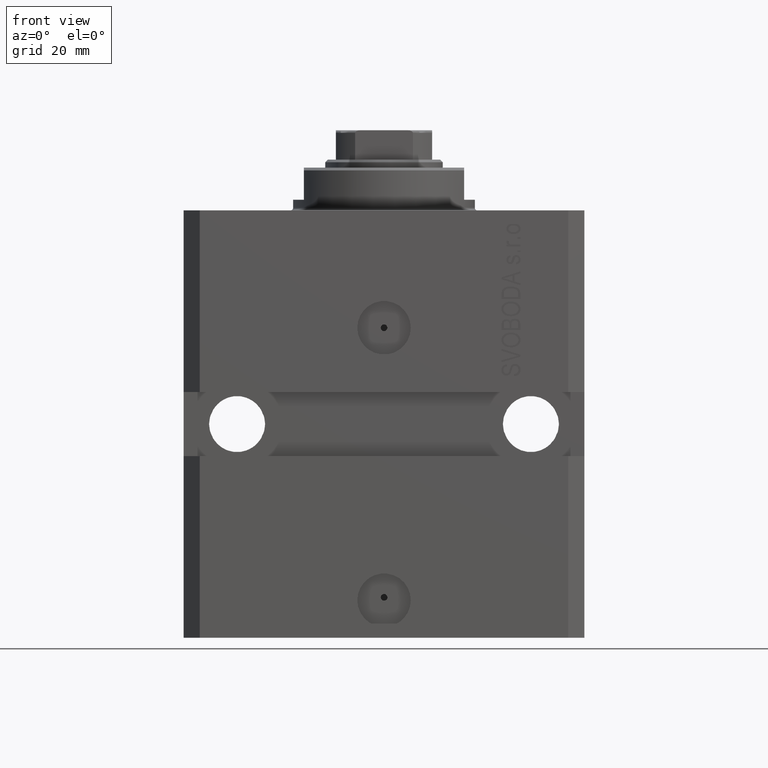
[diagram: clean part render]
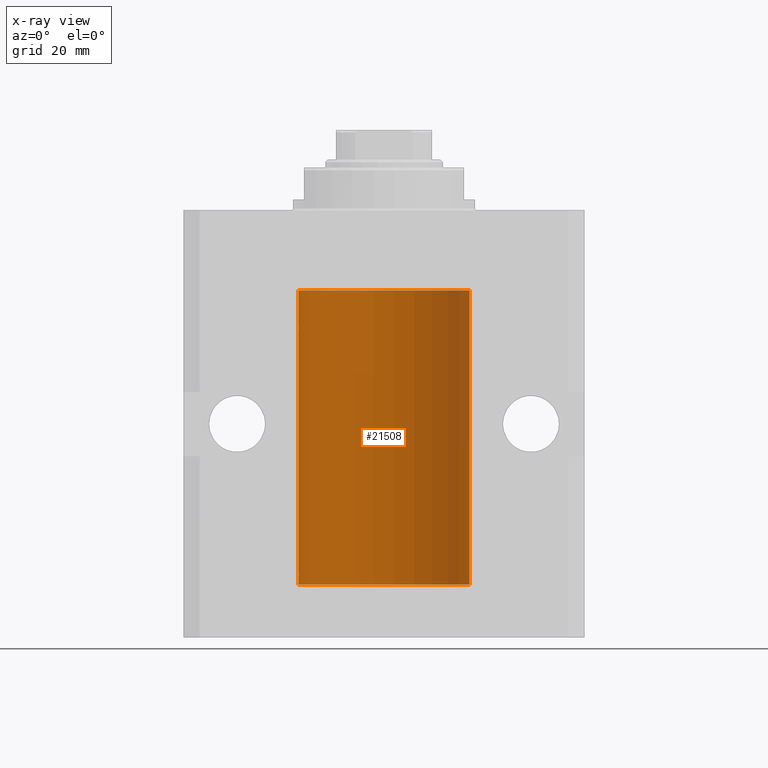
[diagram: x-ray — body ghosted, one internal face saturated and labeled with its STEP entity id]
A machine part, front view, then the same camera in x-ray: the body is ghosted and one INTERNAL B-rep face — a face not visible from any outside direction — is saturated and labeled: STEP entity #21508.
In plain terms, the highlighted cylindrical surface (partial cylindrical patch) has radius 16 mm, axis along (0, 0, 1).
Its self-contained STEP definition (entity closure, byte-faithful):
#252 = ORIENTED_EDGE ( 'NONE', *, *, #2440, .F. ) ;
#610 = ORIENTED_EDGE ( 'NONE', *, *, #6447, .F. ) ;
#808 = ORIENTED_EDGE ( 'NONE', *, *, #30813, .T. ) ;
#1855 = CARTESIAN_POINT ( 'NONE',  ( 16.00000000000000000, 0.000000000000000000, -70.09999999999999432 ) ) ;
#2440 = EDGE_CURVE ( 'NONE', #45936, #5384, #16490, .T. ) ;
#3471 = CARTESIAN_POINT ( 'NONE',  ( -15.99707730059171240, 0.3150375992092334654, -67.45402333202571299 ) ) ;
#3553 = VECTOR ( 'NONE', #4336, 1000.000000000000000 ) ;
#3625 = CARTESIAN_POINT ( 'NONE',  ( 0.000000000000000000, 0.000000000000000000, -15.00000000000000000 ) ) ;
#3771 = B_SPLINE_CURVE_WITH_KNOTS ( 'NONE', 3,
 ( #14120, #28543, #25453, #3471, #46791, #7497, #42994, #39908, #10584, #24994, #7024, #28781, #25689, #18823 ),
 .UNSPECIFIED., .F., .F.,
 ( 4, 2, 2, 2, 2, 2, 4 ),
 ( 9.902737362640428303E-19, 0.0002442776652680895785, 0.0004885553305361781812, 0.0009771106610723552782, 0.001221388326340464752, 0.001465665991608574008, 0.001954221322144763465 ),
 .UNSPECIFIED. ) ;
#3957 = CARTESIAN_POINT ( 'NONE',  ( -15.99711699979842017, 0.3253759916140657737, -22.55856151623175521 ) ) ;
#4336 = DIRECTION ( 'NONE',  ( -0.000000000000000000, -0.000000000000000000, 1.000000000000000000 ) ) ;
#4381 = CARTESIAN_POINT ( 'NONE',  ( -16.00000000000013145, 3.685127046438747128E-13, -68.62500000000343903 ) ) ;
#5384 = VERTEX_POINT ( 'NONE', #4381 ) ;
#5876 = DIRECTION ( 'NONE',  ( -0.000000000000000000, -0.000000000000000000, 1.000000000000000000 ) ) ;
#6311 = CARTESIAN_POINT ( 'NONE',  ( -16.00000000000000000, 1.959434878635765131E-15, -70.09999999999999432 ) ) ;
#6447 = EDGE_CURVE ( 'NONE', #28103, #20108, #22310, .T. ) ;
#7024 = CARTESIAN_POINT ( 'NONE',  ( -15.99228023727723702, 0.5003781296993395911, -68.38347829554236057 ) ) ;
#7497 = CARTESIAN_POINT ( 'NONE',  ( -15.99070653155268040, 0.5573233280232966491, -67.67348148680505915 ) ) ;
#7519 = CARTESIAN_POINT ( 'NONE',  ( -15.99934216141748244, 0.1636497843296417787, -21.39126528029306229 ) ) ;
#7747 = CARTESIAN_POINT ( 'NONE',  ( -16.00000000000000000, 0.1631714642025800244, -22.62499999999985789 ) ) ;
#8261 = ORIENTED_EDGE ( 'NONE', *, *, #17519, .F. ) ;
#8461 = DIRECTION ( 'NONE',  ( -0.000000000000000000, -0.000000000000000000, 1.000000000000000000 ) ) ;
#9023 = AXIS2_PLACEMENT_3D ( 'NONE', #23149, #37599, #30724 ) ;
#10584 = CARTESIAN_POINT ( 'NONE',  ( -15.98844267028591126, 0.6088369347963314970, -68.16324735024328163 ) ) ;
#12511 = LINE ( 'NONE', #1855, #16591 ) ;
#14120 = CARTESIAN_POINT ( 'NONE',  ( -16.00000000000000000, -9.346608026143465119E-15, -67.37500000000000000 ) ) ;
#14599 = CARTESIAN_POINT ( 'NONE',  ( -16.00000000000000000, 1.643679961284177128E-16, -21.37499999999999645 ) ) ;
#15066 = CARTESIAN_POINT ( 'NONE',  ( -16.00000000000013145, 3.685127034031037939E-13, -22.62500000000341771 ) ) ;
#15225 = AXIS2_PLACEMENT_3D ( 'NONE', #29741, #8461, #44196 ) ;
#15342 = CARTESIAN_POINT ( 'NONE',  ( -16.00000000000000000, 1.959434878635765131E-15, -70.09999999999999432 ) ) ;
#16490 = LINE ( 'NONE', #6311, #26065 ) ;
#16591 = VECTOR ( 'NONE', #5876, 1000.000000000000000 ) ;
#16669 = EDGE_CURVE ( 'NONE', #43410, #16945, #12511, .T. ) ;
#16945 = VERTEX_POINT ( 'NONE', #31072 ) ;
#17519 = EDGE_CURVE ( 'NONE', #43410, #45936, #38529, .T. ) ;
#18062 = DIRECTION ( 'NONE',  ( 0.000000000000000000, 0.000000000000000000, 1.000000000000000000 ) ) ;
#18165 = CARTESIAN_POINT ( 'NONE',  ( -15.99548640841683067, 0.3843705577988847377, -21.50046628527008608 ) ) ;
#18823 = CARTESIAN_POINT ( 'NONE',  ( -16.00000000000013145, 3.685127046438747128E-13, -68.62500000000343903 ) ) ;
#20063 = CARTESIAN_POINT ( 'NONE',  ( -16.00000000000000000, -9.346608026143465119E-15, -67.37500000000000000 ) ) ;
#20108 = VERTEX_POINT ( 'NONE', #42846 ) ;
#20177 = EDGE_LOOP ( 'NONE', ( #252, #8261, #25748, #808, #610, #23896, #37763, #46135 ) ) ;
#21508 = ADVANCED_FACE ( 'NONE', ( #33292 ), #30446, .F. ) ;
#22160 = CARTESIAN_POINT ( 'NONE',  ( -15.98844267028591482, 0.6088369347963316081, -22.16324735024328518 ) ) ;
#22310 = LINE ( 'NONE', #41001, #3553 ) ;
#22440 = DIRECTION ( 'NONE',  ( -0.000000000000000000, -0.000000000000000000, 1.000000000000000000 ) ) ;
#23149 = CARTESIAN_POINT ( 'NONE',  ( 0.000000000000000000, 0.000000000000000000, -70.09999999999999432 ) ) ;
#23896 = ORIENTED_EDGE ( 'NONE', *, *, #46626, .T. ) ;
#24994 = CARTESIAN_POINT ( 'NONE',  ( -15.99070426498502862, 0.5462220647145645813, -68.31460064614141459 ) ) ;
#25121 = CARTESIAN_POINT ( 'NONE',  ( -16.00000000000000000, 1.959434878635765131E-15, -70.09999999999999432 ) ) ;
#25250 = CARTESIAN_POINT ( 'NONE',  ( -16.00000000000000711, 0.08259886010189904093, -21.37500000000000000 ) ) ;
#25304 = VERTEX_POINT ( 'NONE', #20063 ) ;
#25377 = DIRECTION ( 'NONE',  ( 1.000000000000000000, 0.000000000000000000, 0.000000000000000000 ) ) ;
#25453 = CARTESIAN_POINT ( 'NONE',  ( -15.99934216141748244, 0.1636497843296345067, -67.39126528029308361 ) ) ;
#25575 = VECTOR ( 'NONE', #22440, 1000.000000000000000 ) ;
#25689 = CARTESIAN_POINT ( 'NONE',  ( -15.99999999999998934, 0.1631714642025807183, -68.62499999999984368 ) ) ;
#25748 = ORIENTED_EDGE ( 'NONE', *, *, #16669, .T. ) ;
#25934 = CARTESIAN_POINT ( 'NONE',  ( -15.99070426498503217, 0.5462220647145618058, -22.31460064614143590 ) ) ;
#26065 = VECTOR ( 'NONE', #30676, 1000.000000000000000 ) ;
#27575 = CIRCLE ( 'NONE', #41846, 16.00000000000000000 ) ;
#28103 = VERTEX_POINT ( 'NONE', #43709 ) ;
#28543 = CARTESIAN_POINT ( 'NONE',  ( -16.00000000000000711, 0.08259886010189028405, -67.37500000000001421 ) ) ;
#28781 = CARTESIAN_POINT ( 'NONE',  ( -15.99711699979840951, 0.3253759916140645525, -68.55856151623176231 ) ) ;
#28801 = CARTESIAN_POINT ( 'NONE',  ( -15.99070653155267685, 0.5573233280232986475, -21.67348148680506625 ) ) ;
#29741 = CARTESIAN_POINT ( 'NONE',  ( 0.000000000000000000, 0.000000000000000000, -70.09999999999999432 ) ) ;
#30446 = CYLINDRICAL_SURFACE ( 'NONE', #15225, 16.00000000000000000 ) ;
#30676 = DIRECTION ( 'NONE',  ( -0.000000000000000000, -0.000000000000000000, 1.000000000000000000 ) ) ;
#30724 = DIRECTION ( 'NONE',  ( 1.000000000000000000, 0.000000000000000000, 0.000000000000000000 ) ) ;
#30813 = EDGE_CURVE ( 'NONE', #16945, #20108, #27575, .T. ) ;
#31072 = CARTESIAN_POINT ( 'NONE',  ( 16.00000000000000000, 0.000000000000000000, -15.00000000000000000 ) ) ;
#33292 = FACE_OUTER_BOUND ( 'NONE', #20177, .T. ) ;
#33813 = B_SPLINE_CURVE_WITH_KNOTS ( 'NONE', 3,
 ( #14599, #25250, #7519, #35674, #18165, #28801, #43016, #36376, #22160, #25934, #39698, #3957, #7747, #15066 ),
 .UNSPECIFIED., .F., .F.,
 ( 4, 2, 2, 2, 2, 2, 4 ),
 ( 1.597328219370744179E-19, 0.0002442776652680942405, 0.0004885553305361882643, 0.0009771106610723839011, 0.001221388326340481665, 0.001465665991608579430, 0.001954221322144767369 ),
 .UNSPECIFIED. ) ;
#34722 = CARTESIAN_POINT ( 'NONE',  ( -16.00000000000013145, 3.685127034031037939E-13, -22.62500000000341771 ) ) ;
#35674 = CARTESIAN_POINT ( 'NONE',  ( -15.99707730059171240, 0.3150375992092407373, -21.45402333202571654 ) ) ;
#36369 = CARTESIAN_POINT ( 'NONE',  ( 16.00000000000000000, 0.000000000000000000, -70.09999999999999432 ) ) ;
#36376 = CARTESIAN_POINT ( 'NONE',  ( -15.98778717651346071, 0.6250289588122140971, -22.08131585687052478 ) ) ;
#37599 = DIRECTION ( 'NONE',  ( 0.000000000000000000, 0.000000000000000000, 1.000000000000000000 ) ) ;
#37763 = ORIENTED_EDGE ( 'NONE', *, *, #45352, .F. ) ;
#38529 = CIRCLE ( 'NONE', #9023, 16.00000000000000000 ) ;
#39698 = CARTESIAN_POINT ( 'NONE',  ( -15.99228023727724413, 0.5003781296993413674, -22.38347829554236057 ) ) ;
#39908 = CARTESIAN_POINT ( 'NONE',  ( -15.98778717651346426, 0.6250289588122136530, -68.08131585687053189 ) ) ;
#40436 = LINE ( 'NONE', #15342, #25575 ) ;
#41001 = CARTESIAN_POINT ( 'NONE',  ( -16.00000000000000000, 1.959434878635765131E-15, -70.09999999999999432 ) ) ;
#41095 = VERTEX_POINT ( 'NONE', #34722 ) ;
#41244 = EDGE_CURVE ( 'NONE', #25304, #5384, #3771, .T. ) ;
#41846 = AXIS2_PLACEMENT_3D ( 'NONE', #3625, #18062, #25377 ) ;
#42846 = CARTESIAN_POINT ( 'NONE',  ( -16.00000000000000000, 1.959434878635765131E-15, -15.00000000000000000 ) ) ;
#42994 = CARTESIAN_POINT ( 'NONE',  ( -15.98779057735153586, 0.6249419637998054888, -67.83670145863507628 ) ) ;
#43016 = CARTESIAN_POINT ( 'NONE',  ( -15.98779057735153941, 0.6249419637998100407, -21.83670145863507273 ) ) ;
#43410 = VERTEX_POINT ( 'NONE', #36369 ) ;
#43709 = CARTESIAN_POINT ( 'NONE',  ( -16.00000000000000000, 1.643679961284177128E-16, -21.37499999999999645 ) ) ;
#44196 = DIRECTION ( 'NONE',  ( 1.000000000000000000, 0.000000000000000000, 0.000000000000000000 ) ) ;
#45352 = EDGE_CURVE ( 'NONE', #25304, #41095, #40436, .T. ) ;
#45936 = VERTEX_POINT ( 'NONE', #25121 ) ;
#46135 = ORIENTED_EDGE ( 'NONE', *, *, #41244, .T. ) ;
#46626 = EDGE_CURVE ( 'NONE', #28103, #41095, #33813, .T. ) ;
#46791 = CARTESIAN_POINT ( 'NONE',  ( -15.99548640841682712, 0.3843705577988820732, -67.50046628527007897 ) ) ;